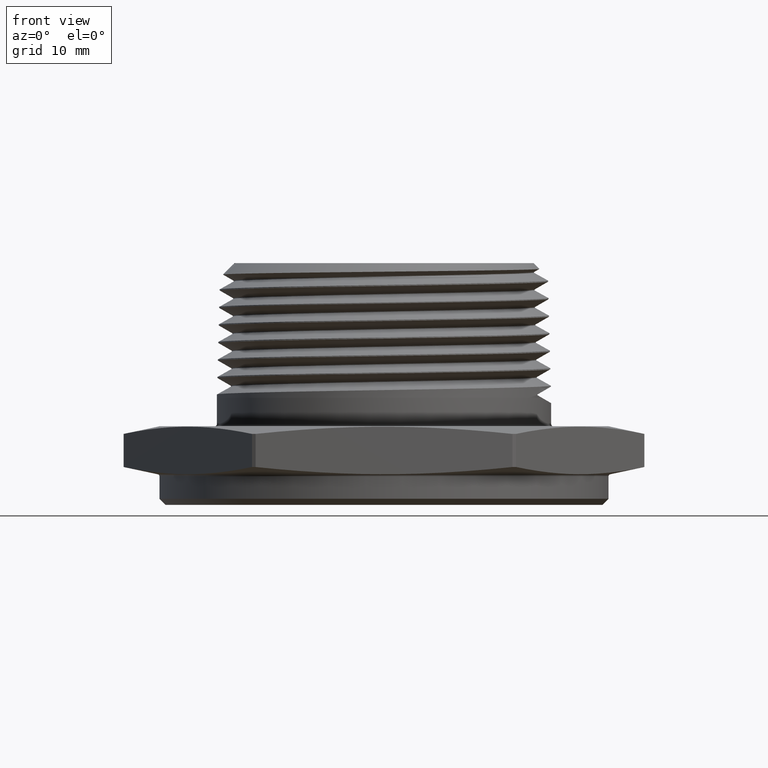
[diagram: clean part render]
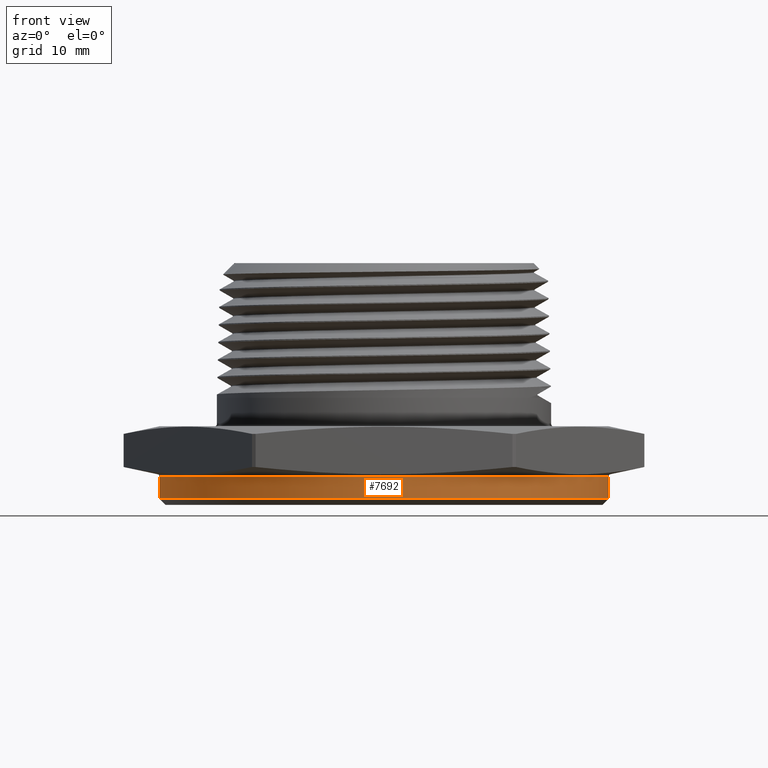
[diagram: same view with one face highlighted and labeled with its STEP entity id]
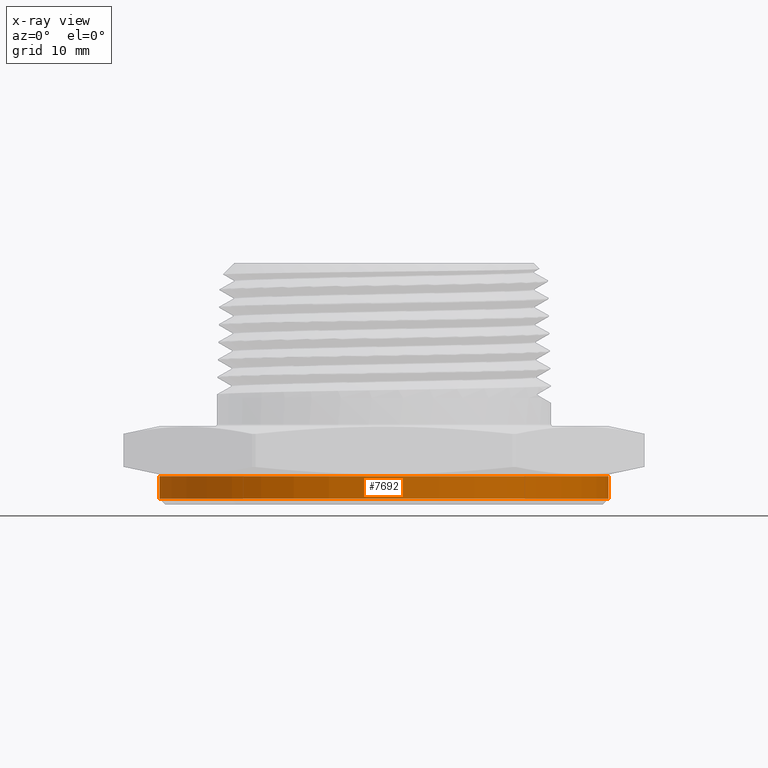
[diagram: x-ray of the same camera — body ghosted, the highlighted face saturated]
A machine part, front view. The second image highlights one B-rep face of the part: STEP entity #7692.
The next image is the same camera in x-ray: the body ghosted, the highlighted face saturated — about 0% of this face is hidden behind the body in this view.
In plain terms, the highlighted cylindrical surface (partial cylindrical patch) has radius 28.321 mm, axis along (-0, -0, 1).
Its self-contained STEP definition (entity closure, byte-faithful):
#49 = EDGE_CURVE ( 'NONE', #299, #296, #541, .T. ) ;
#136 = EDGE_CURVE ( 'NONE', #299, #290, #3221, .T. ) ;
#138 = EDGE_CURVE ( 'NONE', #296, #288, #3223, .T. ) ;
#140 = EDGE_CURVE ( 'NONE', #288, #290, #3219, .T. ) ;
#182 = AXIS2_PLACEMENT_3D ( 'NONE', #5604, #5605, #5606 ) ;
#202 = AXIS2_PLACEMENT_3D ( 'NONE', #950, #951, #952 ) ;
#288 = VERTEX_POINT ( 'NONE', #5720 ) ;
#290 = VERTEX_POINT ( 'NONE', #5722 ) ;
#296 = VERTEX_POINT ( 'NONE', #5728 ) ;
#299 = VERTEX_POINT ( 'NONE', #5731 ) ;
#398 = EDGE_LOOP ( 'NONE', ( #7385, #7377, #7383, #7340 ) ) ;
#541 = CIRCLE ( 'NONE', #182, 1.115000000000000200 ) ;
#922 = CARTESIAN_POINT ( 'NONE',  ( -1.115000000000000200, 1.365481181049298900E-016, -0.1499999999999999900 ) ) ;
#923 = DIRECTION ( 'NONE',  ( -0.0000000000000000000, -0.0000000000000000000, 1.000000000000000000 ) ) ;
#939 = DIRECTION ( 'NONE',  ( -0.0000000000000000000, -0.0000000000000000000, 1.000000000000000000 ) ) ;
#943 = CARTESIAN_POINT ( 'NONE',  ( 1.115000000000000200, 0.0000000000000000000, -0.1499999999999999900 ) ) ;
#950 = CARTESIAN_POINT ( 'NONE',  ( 0.0000000000000000000, 0.0000000000000000000, -0.008097840331950385800 ) ) ;
#951 = DIRECTION ( 'NONE',  ( -6.274932739761922300E-017, -0.0000000000000000000, -1.000000000000000000 ) ) ;
#952 = DIRECTION ( 'NONE',  ( -1.000000000000000000, 0.0000000000000000000, 6.316632832884014900E-017 ) ) ;
#3219 = CIRCLE ( 'NONE', #202, 1.115000000000000200 ) ;
#3221 = LINE ( 'NONE', #922, #3222 ) ;
#3222 = VECTOR ( 'NONE', #923, 39.37007874015748100 ) ;
#3223 = LINE ( 'NONE', #943, #3225 ) ;
#3225 = VECTOR ( 'NONE', #939, 39.37007874015748100 ) ;
#3355 = FACE_OUTER_BOUND ( 'NONE', #398, .T. ) ;
#3357 = CYLINDRICAL_SURFACE ( 'NONE', #7314, 1.115000000000000200 ) ;
#4881 = DIRECTION ( 'NONE',  ( 1.000000000000000000, 0.0000000000000000000, 0.0000000000000000000 ) ) ;
#4883 = CARTESIAN_POINT ( 'NONE',  ( 0.0000000000000000000, 0.0000000000000000000, -0.1499999999999999900 ) ) ;
#4884 = DIRECTION ( 'NONE',  ( -0.0000000000000000000, -0.0000000000000000000, 1.000000000000000000 ) ) ;
#5604 = CARTESIAN_POINT ( 'NONE',  ( 0.0000000000000000000, 0.0000000000000000000, -0.1200000000000012600 ) ) ;
#5605 = DIRECTION ( 'NONE',  ( 0.0000000000000000000, 0.0000000000000000000, 1.000000000000000000 ) ) ;
#5606 = DIRECTION ( 'NONE',  ( -1.000000000000000000, 0.0000000000000000000, 0.0000000000000000000 ) ) ;
#5720 = CARTESIAN_POINT ( 'NONE',  ( 1.115000000000000200, 0.0000000000000000000, -0.008097840331950457000 ) ) ;
#5722 = CARTESIAN_POINT ( 'NONE',  ( -1.115000000000000200, 1.365481181049298900E-016, -0.008097840331950316400 ) ) ;
#5728 = CARTESIAN_POINT ( 'NONE',  ( 1.115000000000000200, 0.0000000000000000000, -0.1200000000000012600 ) ) ;
#5731 = CARTESIAN_POINT ( 'NONE',  ( -1.115000000000000200, 1.365481181049298900E-016, -0.1200000000000012600 ) ) ;
#7314 = AXIS2_PLACEMENT_3D ( 'NONE', #4883, #4884, #4881 ) ;
#7340 = ORIENTED_EDGE ( 'NONE', *, *, #140, .T. ) ;
#7377 = ORIENTED_EDGE ( 'NONE', *, *, #49, .T. ) ;
#7383 = ORIENTED_EDGE ( 'NONE', *, *, #138, .T. ) ;
#7385 = ORIENTED_EDGE ( 'NONE', *, *, #136, .F. ) ;
#7692 = ADVANCED_FACE ( 'NONE', ( #3355 ), #3357, .T. ) ;